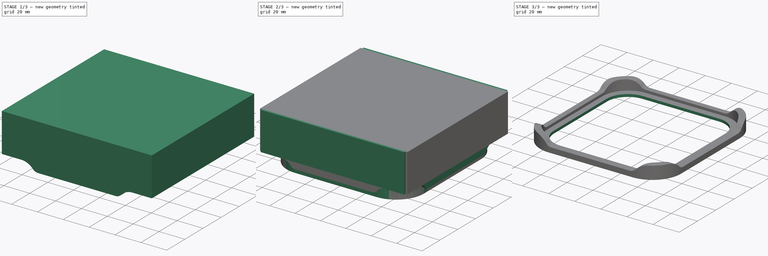
[diagram: build sequence overview — one tinted view per stage of 3, left to right]
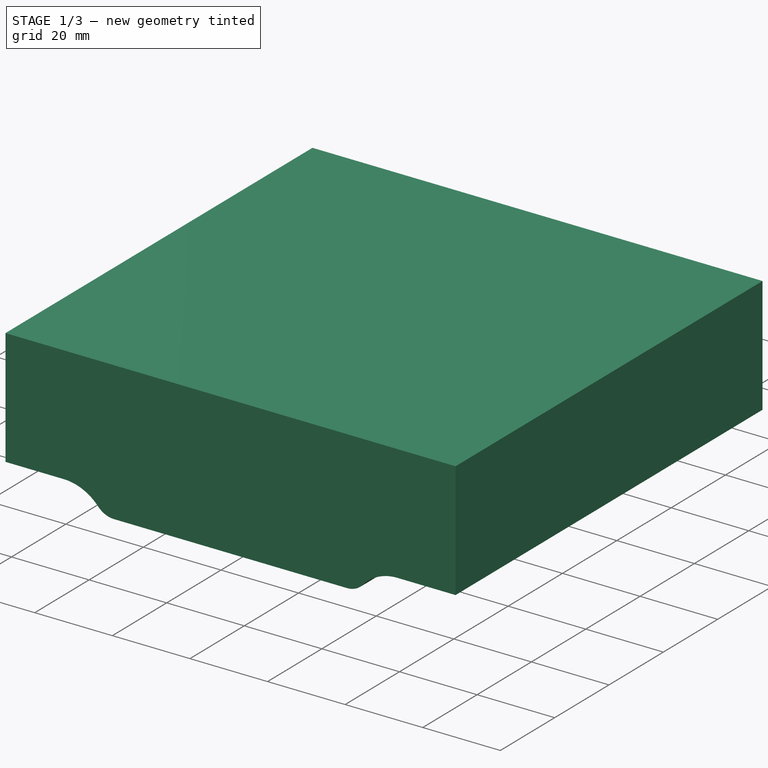
[diagram: stage 1 of 3 — iso view after this stage's code; geometry added in this stage tinted green]
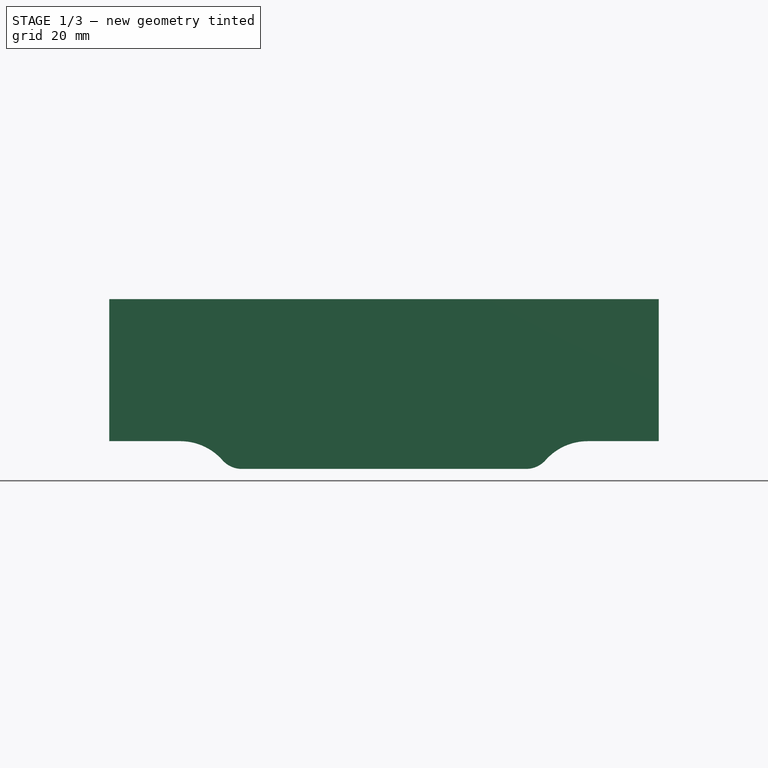
[diagram: stage 1 of 3 — front view after this stage's code; geometry added in this stage tinted green]
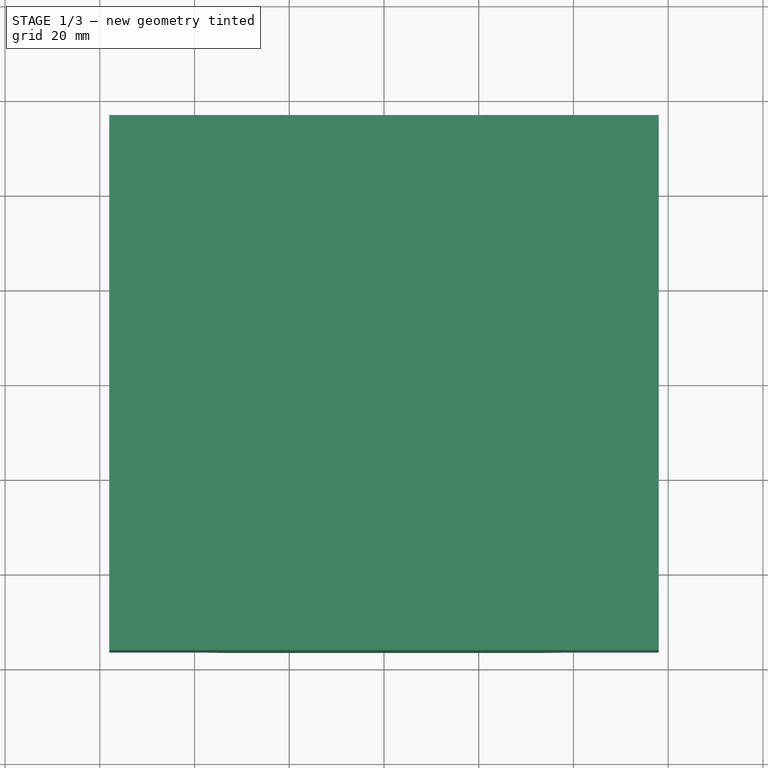
[diagram: stage 1 of 3 — top view after this stage's code; geometry added in this stage tinted green]
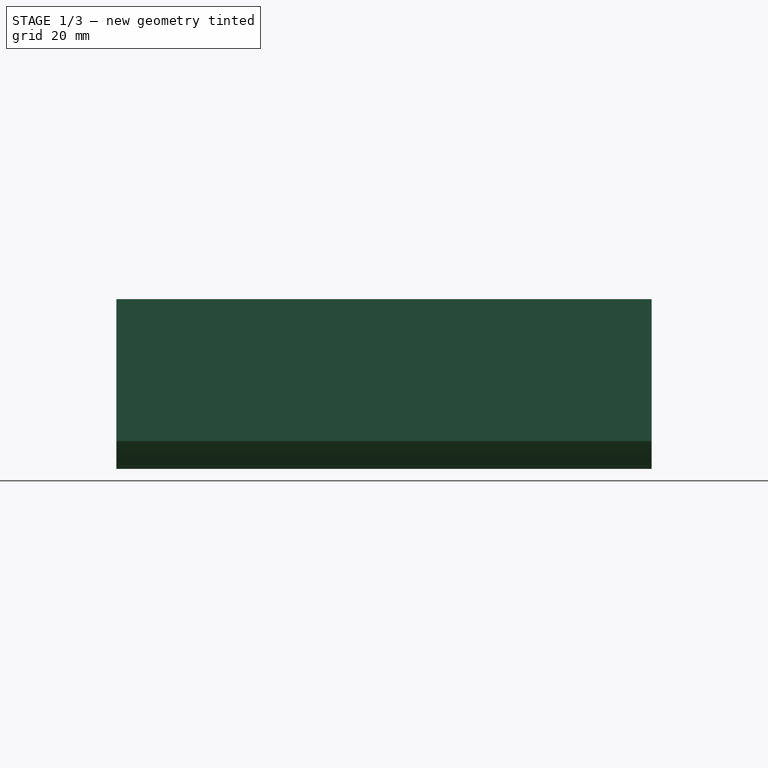
[diagram: stage 1 of 3 — right view after this stage's code; geometry added in this stage tinted green]
FCSTD DOCUMENT  (FreeCAD 0.18R16146 (Git))
Label: antideslizante
License: All rights reserved
LicenseURL: http://en.wikipedia.org/wiki/All_rights_reserved
objects: Sketcher::SketchObject×5, PartDesign::Pad×3, PartDesign::Body×3, PartDesign::Pocket×2, Part::Fuse×1, Part::Cut×1
note: 20 computed .brp shape members not serialized (recipe doc carries the construction recipe); baked Part::Feature solids carry a one-line shape summary decoded from their .brp

FEATURE [PartDesign::Body] Body
  Group = -> [Sketch,Pad,Sketch001,Pocket,Sketch002,Pocket001]
  Origin = -> Origin
  Tip = -> Pocket001
FEATURE [Sketcher::SketchObject] Sketch003
  MapMode = 5
  Placement = pos=(0,0,0) rot=(1,0,0;1.5708rad)
  Support = -> [XZ_Plane001]
  sketch-geometry (10):
    g0: LineSegment StartX=-58 StartY=39.8566 StartZ=0 EndX=58 EndY=39.8566 EndZ=0
    g1: LineSegment StartX=58 StartY=39.8566 StartZ=0 EndX=58 EndY=9.85655 EndZ=0
    g2: LineSegment StartX=58 StartY=9.85655 StartZ=0 EndX=43 EndY=9.85655 EndZ=0
    g3: LineSegment StartX=-58 StartY=39.8566 StartZ=0 EndX=-58 EndY=9.85655 EndZ=0
    g4: LineSegment StartX=-58 StartY=9.85655 StartZ=0 EndX=-43 EndY=9.85655 EndZ=0
    g5: LineSegment StartX=-30 StartY=4 StartZ=0 EndX=30 EndY=4 EndZ=0
    g6: ArcOfCircle CenterX=-43 CenterY=-2 CenterZ=0 NormalX=0 NormalY=0 NormalZ=1 AngleXU=0 Radius=11.8566 StartAngle=0.72425 EndAngle=1.5708
    g7: ArcOfCircle CenterX=-30 CenterY=9.5 CenterZ=0 NormalX=0 NormalY=0 NormalZ=1 AngleXU=0 Radius=5.5 StartAngle=3.86584 EndAngle=4.71239
    g8: ArcOfCircle CenterX=30 CenterY=9.5 CenterZ=0 NormalX=0 NormalY=0 NormalZ=1 AngleXU=0 Radius=5.5 StartAngle=4.71239 EndAngle=5.55894
    g9: ArcOfCircle CenterX=43 CenterY=-2 CenterZ=0 NormalX=0 NormalY=0 NormalZ=1 AngleXU=0 Radius=11.8566 StartAngle=1.5708 EndAngle=2.41734
  constraints (26):
    c: Coincident(g0,g1)
    c: Coincident(g1,g2)
    c: Coincident(g3,g4)
    c: Horizontal(g4)
    c: Horizontal(g2)
    c: DistanceX(g5,g5) = 60
    c: Symmetric(g5,g5,g-2)
    c: DistanceY(g-1,g5) = 4
    c: Vertical(g3)
    c: Vertical(g1)
    c: DistanceX(g4,g4) = 15
    c: DistanceX(g2,g2) = 15
    c: Coincident(g3,g0)
    c: DistanceY(g3,g3) = 30
    c: DistanceY(g1,g1) = 30
    c: Tangent(g7,g5) = -1.5708
    c: Tangent(g6,g4) = 1.5708
    c: Tangent(g7,g6) = 1.5708
    c: Tangent(g9,g2) = -1.5708
    c: Tangent(g8,g9) = 1.5708
    c: Tangent(g5,g8) = -1.5708
    c: DistanceY(g9,g-1) = 2
    c: DistanceY(g6,g-1) = 2
    c: Symmetric(g0,g0,g-2)
    c: DistanceY(g-1,g7) = 9.5
    c: DistanceX(g6,g-1) = 43
FEATURE [PartDesign::Pad] Pad001
  Length = 113
  Length2 = 100
  Midplane = true
  Placement = pos=(0,0,0) rot=(1,0,0;1.5708rad)
  Profile = -> Sketch003
  Type = 0
FEATURE [PartDesign::Body] Body001  label="Corte Y"
  Group = -> [Sketch003,Pad001]
  Origin = -> Origin001
  Tip = -> Pad001
FEATURE [Sketcher::SketchObject] Sketch004
  MapMode = 5
  Placement = pos=(0,0,0) rot=(1,0,0;1.5708rad)
  Support = -> [XZ_Plane002]
  sketch-geometry (10):
    g0: LineSegment StartX=-58 StartY=39.8566 StartZ=0 EndX=58 EndY=39.8566 EndZ=0
    g1: LineSegment StartX=58 StartY=39.8566 StartZ=0 EndX=58 EndY=9.85655 EndZ=0
    g2: LineSegment StartX=58 StartY=9.85655 StartZ=0 EndX=43 EndY=9.85655 EndZ=0
    g3: LineSegment StartX=-58 StartY=39.8566 StartZ=0 EndX=-58 EndY=9.85655 EndZ=0
    g4: LineSegment StartX=-58 StartY=9.85655 StartZ=0 EndX=-43 EndY=9.85655 EndZ=0
    g5: LineSegment StartX=-30 StartY=4 StartZ=0 EndX=30 EndY=4 EndZ=0
    g6: ArcOfCircle CenterX=-43 CenterY=-2 CenterZ=0 NormalX=0 NormalY=0 NormalZ=1 AngleXU=0 Radius=11.8566 StartAngle=0.72425 EndAngle=1.5708
    g7: ArcOfCircle CenterX=-30 CenterY=9.5 CenterZ=0 NormalX=0 NormalY=0 NormalZ=1 AngleXU=0 Radius=5.5 StartAngle=3.86584 EndAngle=4.71239
    g8: ArcOfCircle CenterX=30 CenterY=9.5 CenterZ=0 NormalX=0 NormalY=0 NormalZ=1 AngleXU=0 Radius=5.5 StartAngle=4.71239 EndAngle=5.55894
    g9: ArcOfCircle CenterX=43 CenterY=-2 CenterZ=0 NormalX=0 NormalY=0 NormalZ=1 AngleXU=0 Radius=11.8566 StartAngle=1.5708 EndAngle=2.41734
  constraints (26):
    c: Coincident(g0,g1)
    c: Coincident(g1,g2)
    c: Coincident(g3,g4)
    c: Horizontal(g4)
    c: Horizontal(g2)
    c: DistanceX(g5,g5) = 60
    c: Symmetric(g5,g5,g-2)
    c: DistanceY(g-1,g5) = 4
    c: Vertical(g3)
    c: Vertical(g1)
    c: DistanceX(g4,g4) = 15
    c: DistanceX(g2,g2) = 15
    c: Coincident(g3,g0)
    c: DistanceY(g3,g3) = 30
    c: DistanceY(g1,g1) = 30
    c: Tangent(g7,g5) = -1.5708
    c: Tangent(g6,g4) = 1.5708
    c: Tangent(g7,g6) = 1.5708
    c: Tangent(g9,g2) = -1.5708
    c: Tangent(g8,g9) = 1.5708
    c: Tangent(g5,g8) = -1.5708
    c: DistanceY(g9,g-1) = 2
    c: DistanceY(g6,g-1) = 2
    c: Symmetric(g0,g0,g-2)
    c: DistanceY(g-1,g7) = 9.5
    c: DistanceX(g6,g-1) = 43
FEATURE [PartDesign::Pad] Pad002
  Length = 113
  Length2 = 100
  Midplane = true
  Placement = pos=(0,0,0) rot=(1,0,0;1.5708rad)
  Profile = -> Sketch004
  Type = 0
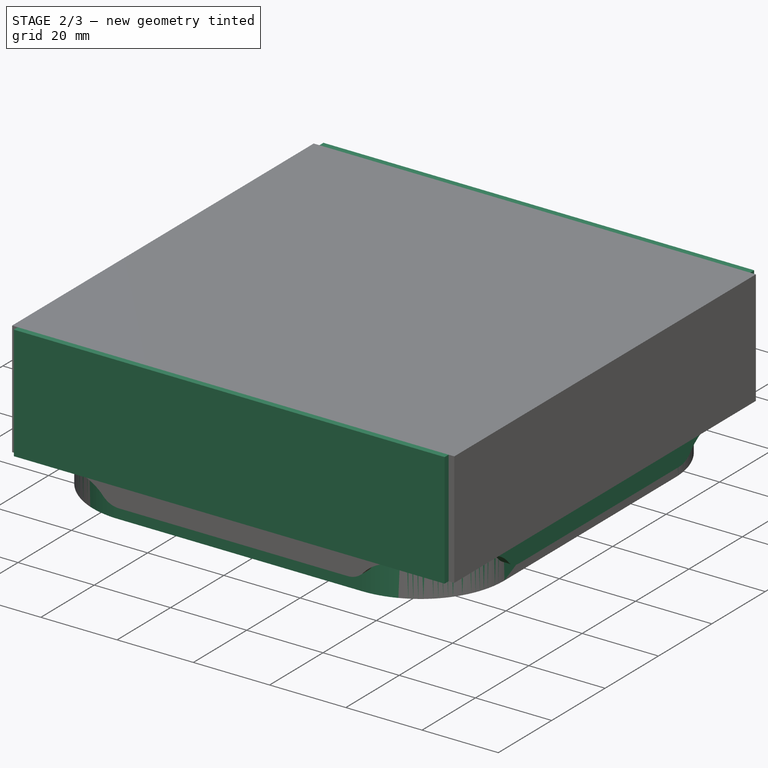
[diagram: stage 2 of 3 — iso view after this stage's code; geometry added in this stage tinted green]
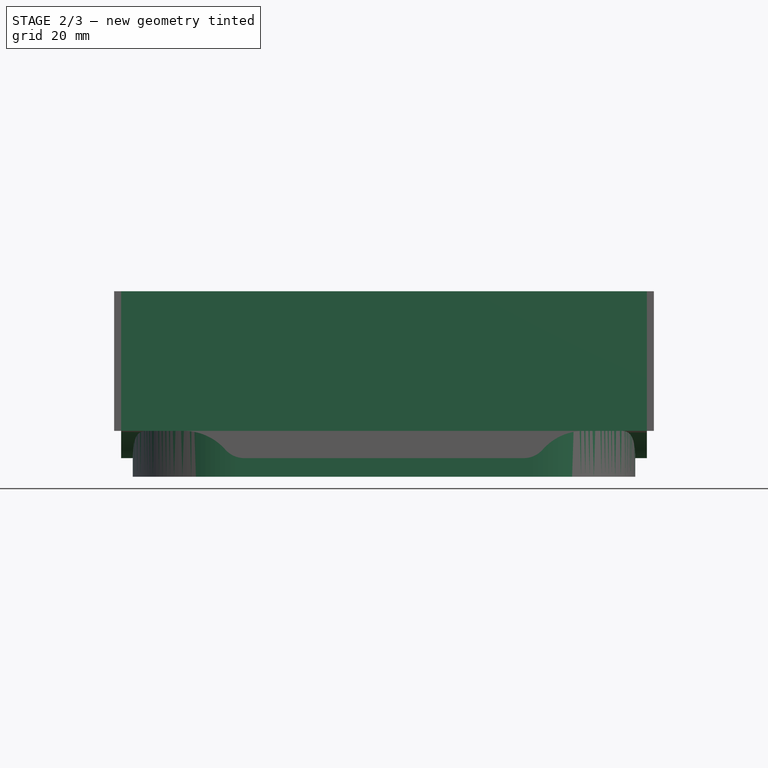
[diagram: stage 2 of 3 — front view after this stage's code; geometry added in this stage tinted green]
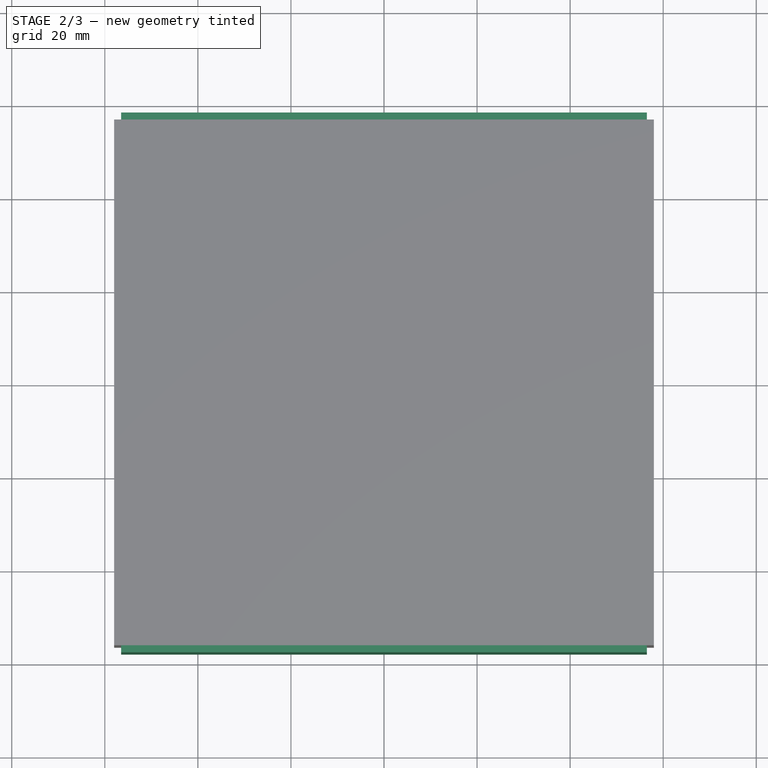
[diagram: stage 2 of 3 — top view after this stage's code; geometry added in this stage tinted green]
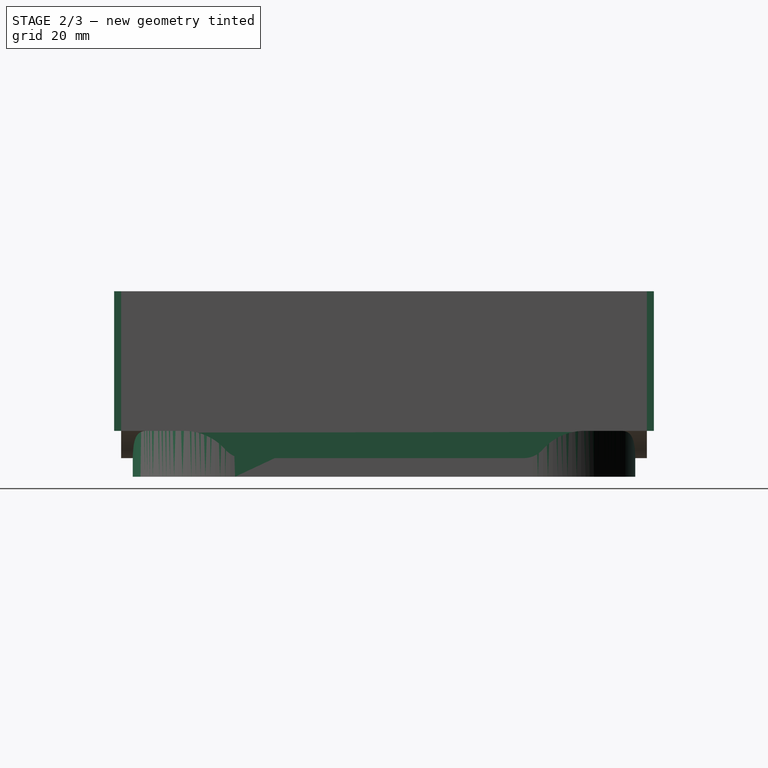
[diagram: stage 2 of 3 — right view after this stage's code; geometry added in this stage tinted green]
FEATURE [Sketcher::SketchObject] Sketch
  MapMode = 5
  Support = -> [XY_Plane]
  sketch-geometry (8):
    g0: LineSegment StartX=-32 StartY=54 StartZ=0 EndX=32 EndY=54 EndZ=0
    g1: LineSegment StartX=54 StartY=32 StartZ=0 EndX=54 EndY=-32 EndZ=0
    g2: LineSegment StartX=32 StartY=-54 StartZ=0 EndX=-32 EndY=-54 EndZ=0
    g3: LineSegment StartX=-54 StartY=-32 StartZ=0 EndX=-54 EndY=32 EndZ=0
    g4: ArcOfCircle CenterX=-32 CenterY=32 CenterZ=0 NormalX=0 NormalY=0 NormalZ=1 AngleXU=0 Radius=22 StartAngle=1.5708 EndAngle=3.14159
    g5: ArcOfCircle CenterX=32 CenterY=32 CenterZ=0 NormalX=0 NormalY=0 NormalZ=1 AngleXU=0 Radius=22 StartAngle=0 EndAngle=1.5708
    g6: ArcOfCircle CenterX=32 CenterY=-32 CenterZ=0 NormalX=0 NormalY=0 NormalZ=1 AngleXU=0 Radius=22 StartAngle=4.71239 EndAngle=6.28319
    g7: ArcOfCircle CenterX=-32 CenterY=-32 CenterZ=0 NormalX=0 NormalY=0 NormalZ=1 AngleXU=0 Radius=22 StartAngle=3.14159 EndAngle=4.71239
  constraints (18):
    c: Horizontal(g2)
    c: Vertical(g1)
    c: Tangent(g3,g4) = 1.5708
    c: Tangent(g0,g5) = 1.5708
    c: Tangent(g1,g5) = 1.5708
    c: Tangent(g1,g6) = 1.5708
    c: Tangent(g2,g6) = 1.5708
    c: Tangent(g2,g7) = 1.5708
    c: Tangent(g3,g7) = 1.5708
    c: Radius(g4) = 22
    c: Tangent(g4,g0) = 1.5708
    c: Radius(g5) = 22
    c: Radius(g6) = 22
    c: Radius(g7) = 22
    c: DistanceX(g0,g0) = 64
    c: DistanceY(g3,g3) = 64
    c: Symmetric(g0,g0,g-2)
    c: Symmetric(g3,g3,g-1)
FEATURE [PartDesign::Pad] Pad  label="Bloque"
  Length = 30
  Length2 = 100
  Profile = -> Sketch
  Type = 0
FEATURE [Sketcher::SketchObject] Sketch001
  MapMode = 5
  Placement = pos=(0,0,30) rot=(0,0,1;0rad)
  Support = -> [Pad]
  sketch-geometry (8):
    g0: LineSegment StartX=-30 StartY=50 StartZ=0 EndX=30 EndY=50 EndZ=0
    g1: LineSegment StartX=50 StartY=30 StartZ=0 EndX=50 EndY=-30 EndZ=0
    g2: LineSegment StartX=30 StartY=-50 StartZ=0 EndX=-30 EndY=-50 EndZ=0
    g3: LineSegment StartX=-50 StartY=-30 StartZ=0 EndX=-50 EndY=30 EndZ=0
    g4: ArcOfCircle CenterX=-30 CenterY=30 CenterZ=0 NormalX=0 NormalY=0 NormalZ=1 AngleXU=0 Radius=20 StartAngle=1.5708 EndAngle=3.14159
    g5: ArcOfCircle CenterX=30 CenterY=30 CenterZ=0 NormalX=0 NormalY=0 NormalZ=1 AngleXU=0 Radius=20 StartAngle=0 EndAngle=1.5708
    g6: ArcOfCircle CenterX=30 CenterY=-30 CenterZ=0 NormalX=0 NormalY=0 NormalZ=1 AngleXU=0 Radius=20 StartAngle=4.71239 EndAngle=6.28319
    g7: ArcOfCircle CenterX=-30 CenterY=-30 CenterZ=0 NormalX=0 NormalY=0 NormalZ=1 AngleXU=0 Radius=20 StartAngle=3.14159 EndAngle=4.71239
  constraints (18):
    c: Horizontal(g2)
    c: Vertical(g1)
    c: Radius(g4) = 20
    c: Radius(g5) = 20
    c: Radius(g6) = 20
    c: Radius(g7) = 20
    c: DistanceX(g0,g0) = 60
    c: Tangent(g3,g4) = 1.5708
    c: Tangent(g0,g4) = 1.5708
    c: Tangent(g0,g5) = 1.5708
    c: Tangent(g1,g5) = 1.5708
    c: Tangent(g2,g6) = 1.5708
    c: Tangent(g1,g6) = 1.5708
    c: Tangent(g2,g7) = 1.5708
    c: Tangent(g3,g7) = 1.5708
    c: DistanceY(g3,g3) = 60
    c: Symmetric(g3,g3,g-1)
    c: Symmetric(g0,g0,g-2)
FEATURE [PartDesign::Pocket] Pocket  label="Vaciado"
  BaseFeature = -> Pad
  Length = 28
  Length2 = 100
  Profile = -> Sketch001
  Type = 0
FEATURE [PartDesign::Body] Body002  label="Corte X"
  Group = -> [Sketch004,Pad002]
  Origin = -> Origin002
  Placement = pos=(0,0,0) rot=(0,0,1;1.5708rad)
  Tip = -> Pad002
FEATURE [Part::Fuse] Fusion
  Base = -> Body001
  Tool = -> Body002
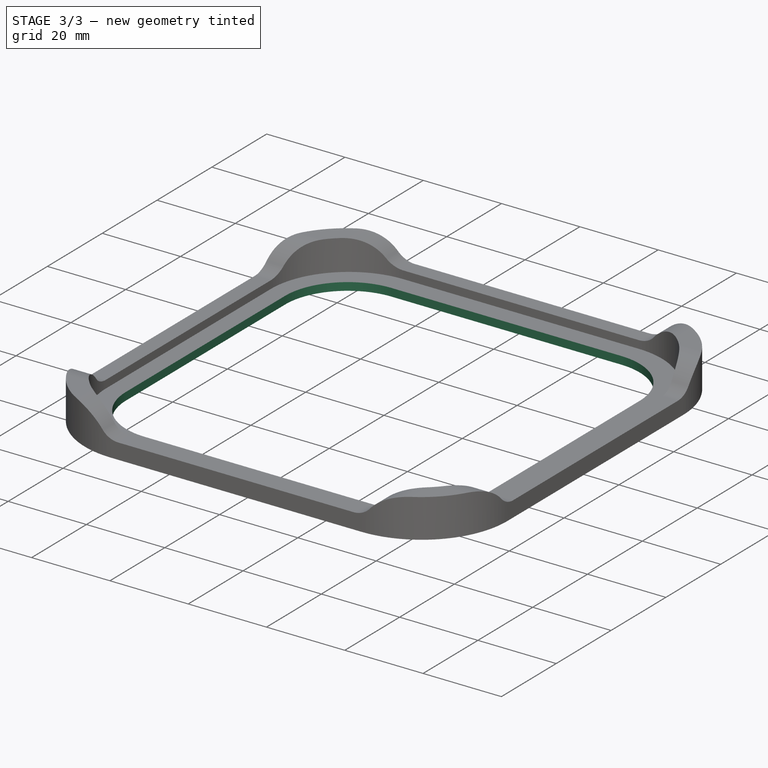
[diagram: stage 3 of 3 — iso view after this stage's code; geometry added in this stage tinted green]
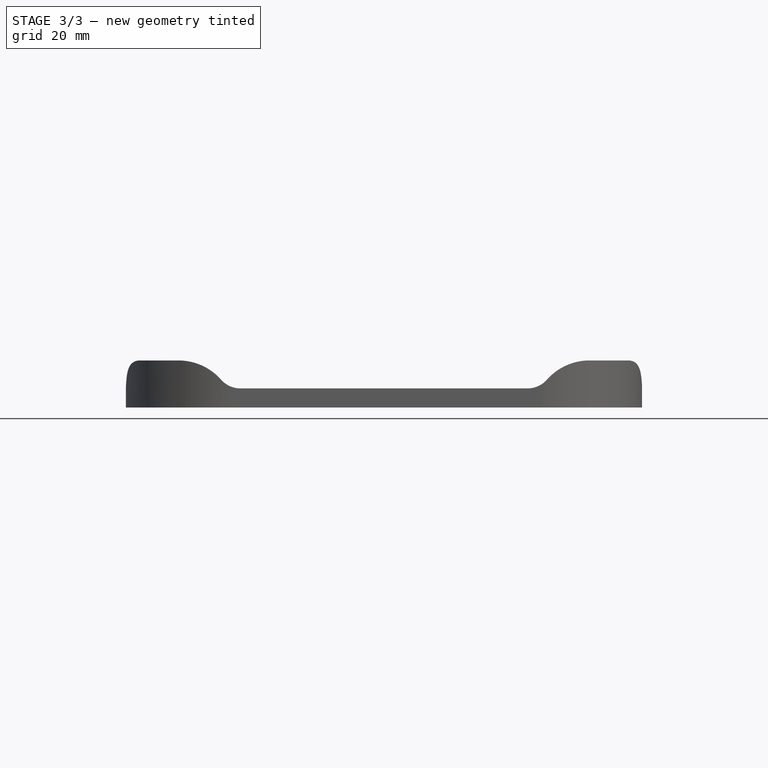
[diagram: stage 3 of 3 — front view after this stage's code; geometry added in this stage tinted green]
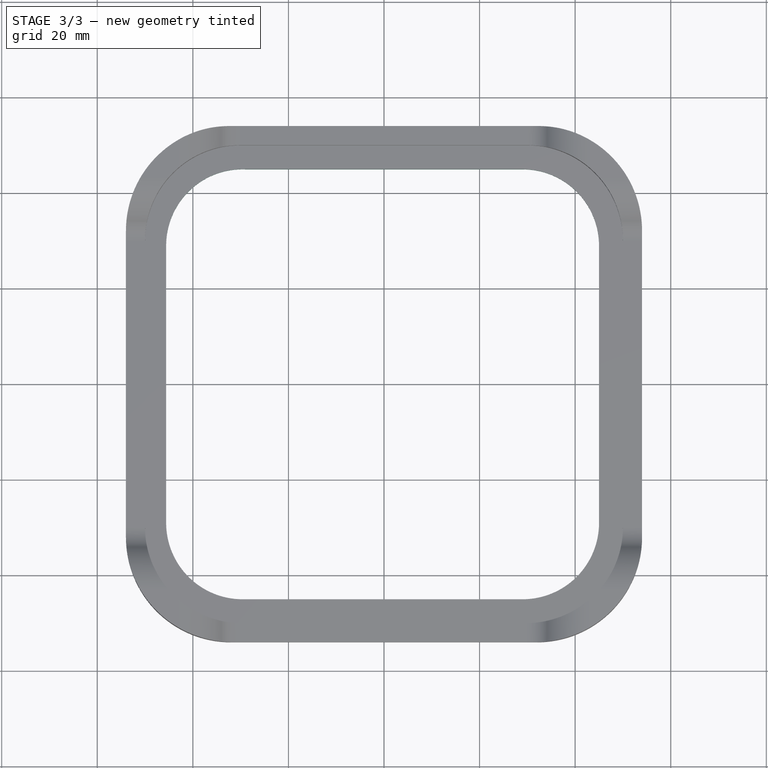
[diagram: stage 3 of 3 — top view after this stage's code; geometry added in this stage tinted green]
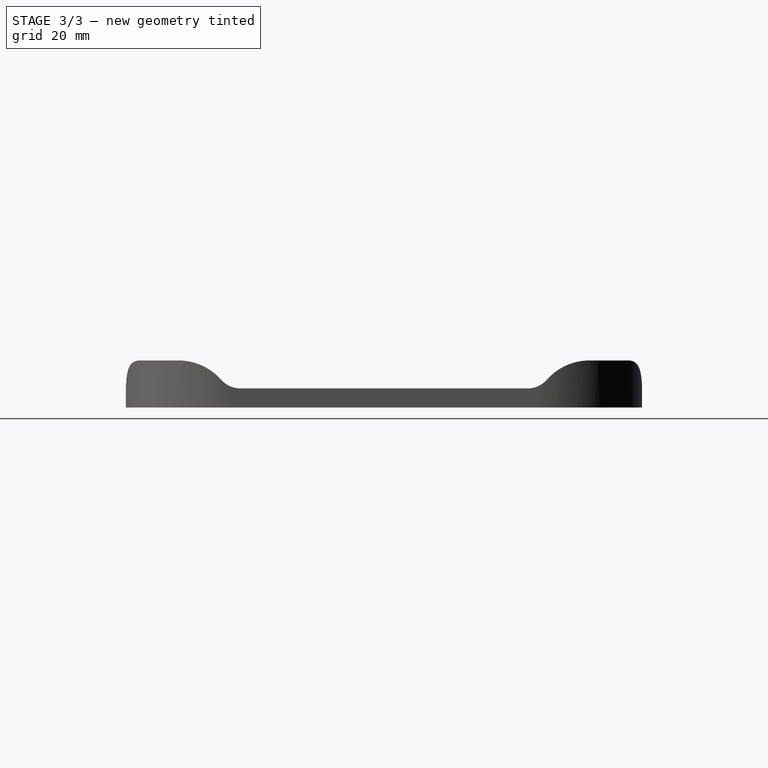
[diagram: stage 3 of 3 — right view after this stage's code; geometry added in this stage tinted green]
FEATURE [Sketcher::SketchObject] Sketch002
  MapMode = 5
  Placement = pos=(0,0,2) rot=(0,0,1;0rad)
  Support = -> [Pocket]
  sketch-geometry (8):
    g0: LineSegment StartX=-29 StartY=44.9891 StartZ=0 EndX=29 EndY=44.9891 EndZ=0
    g1: LineSegment StartX=45 StartY=28.9891 StartZ=0 EndX=45 EndY=-29 EndZ=0
    g2: LineSegment StartX=29 StartY=-45 StartZ=0 EndX=-29.5892 EndY=-45 EndZ=0
    g3: LineSegment StartX=-45.5892 StartY=-29 StartZ=0 EndX=-45.5892 EndY=29 EndZ=0
    g4: ArcOfCircle CenterX=-29.5892 CenterY=29 CenterZ=0 NormalX=0 NormalY=0 NormalZ=1 AngleXU=0 Radius=16 StartAngle=1.53396 EndAngle=3.14159
    g5: ArcOfCircle CenterX=29 CenterY=28.9891 CenterZ=0 NormalX=0 NormalY=0 NormalZ=1 AngleXU=0 Radius=16 StartAngle=0 EndAngle=1.5708
    g6: ArcOfCircle CenterX=29 CenterY=-29 CenterZ=0 NormalX=0 NormalY=0 NormalZ=1 AngleXU=0 Radius=16 StartAngle=4.71239 EndAngle=6.28319
    g7: ArcOfCircle CenterX=-29.5892 CenterY=-29 CenterZ=0 NormalX=0 NormalY=0 NormalZ=1 AngleXU=0 Radius=16 StartAngle=3.14159 EndAngle=4.71239
  constraints (18):
    c: Horizontal(g2)
    c: Vertical(g1)
    c: Coincident(g0,g4)
    c: Radius(g4) = 16
    c: Radius(g7) = 16
    c: Tangent(g2,g7) = 1.5708
    c: Tangent(g3,g7) = 1.5708
    c: Radius(g6) = 16
    c: Tangent(g1,g6) = 1.5708
    c: Tangent(g2,g6) = 1.5708
    c: Radius(g5) = 16
    c: Tangent(g0,g5) = 1.5708
    c: Tangent(g1,g5) = 1.5708
    c: Tangent(g3,g4) = 1.5708
    c: DistanceX(g0,g0) = 58
    c: DistanceY(g3,g3) = 58
    c: Symmetric(g0,g0,g-2)
    c: Symmetric(g3,g3,g-1)
FEATURE [PartDesign::Pocket] Pocket001  label="Hueco"
  BaseFeature = -> Pocket
  Length = 5
  Length2 = 100
  Profile = -> Sketch002
  Type = 1
FEATURE [Part::Cut] Cut
  Base = -> Body
  Tool = -> Fusion
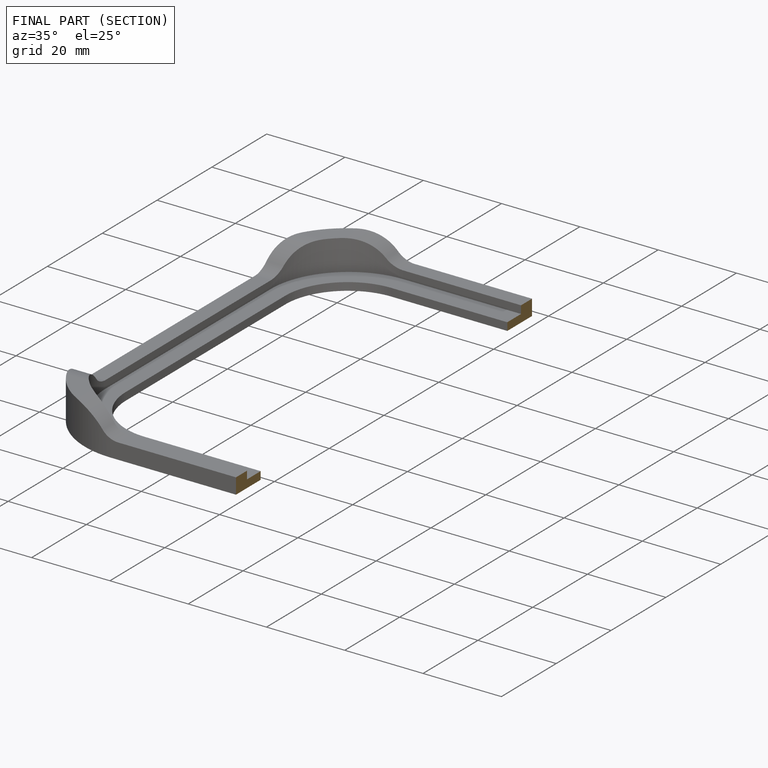
[diagram: finished part — half-section view (interior)]
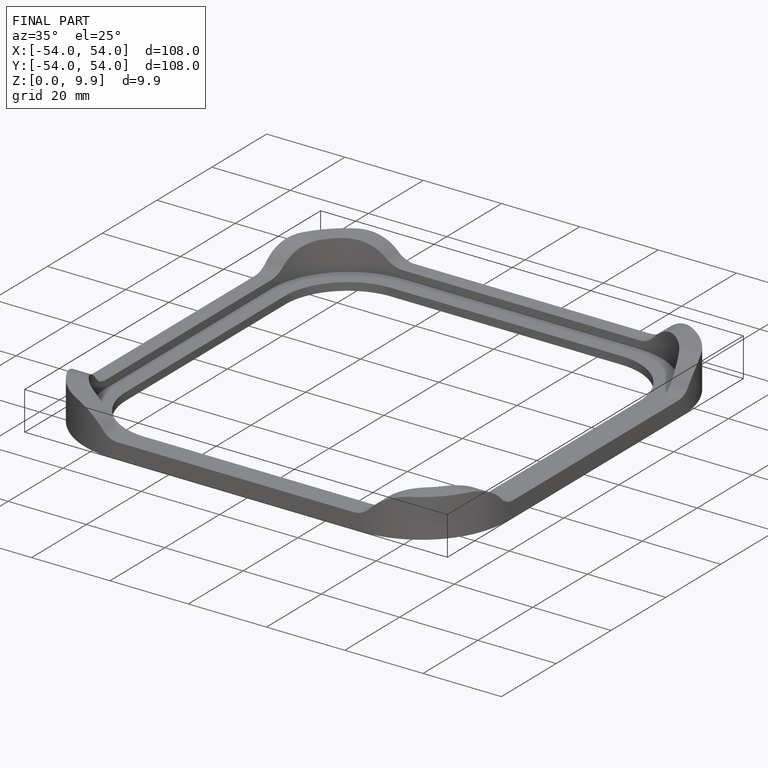
[diagram: finished part — iso view with bounding-box wireframe]
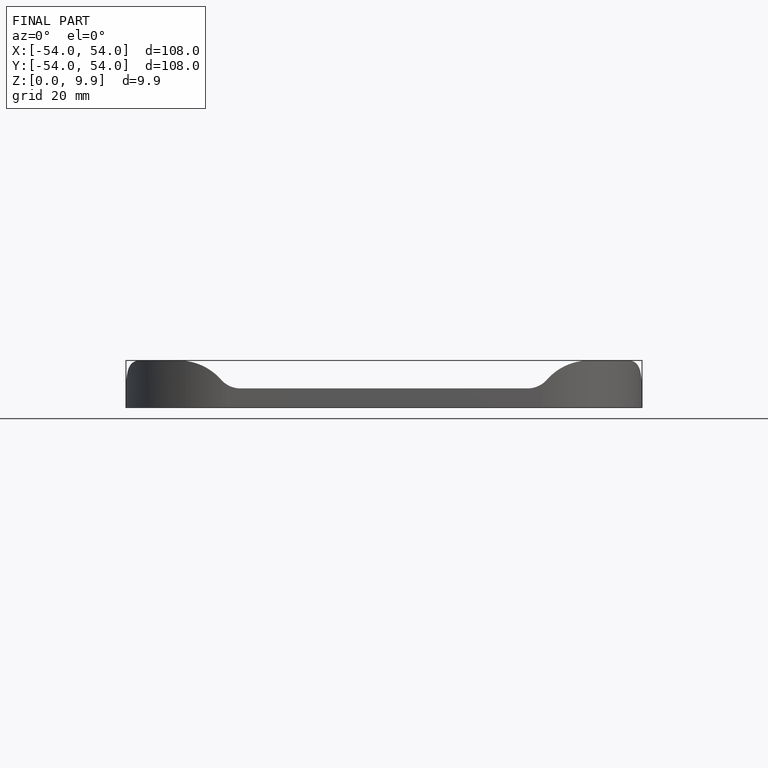
[diagram: finished part — front view with bounding-box wireframe]
